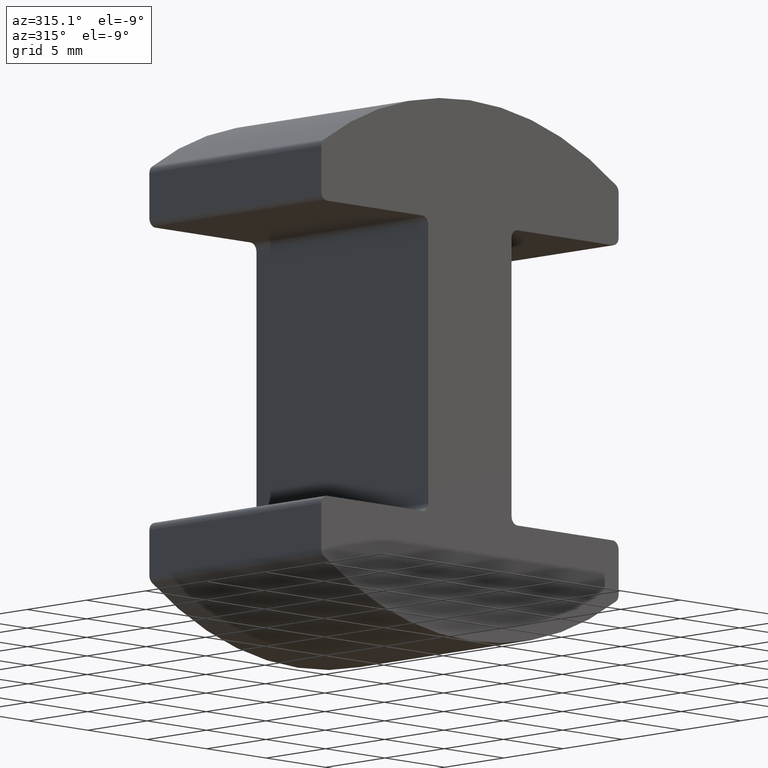
[diagram: clean part render]
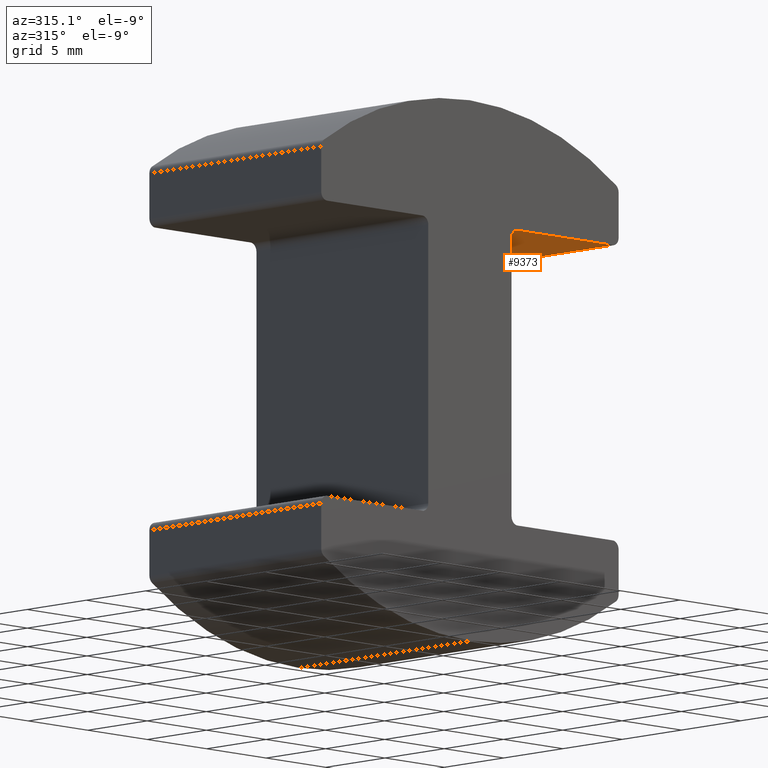
[diagram: same view with one face highlighted and labeled with its STEP entity id]
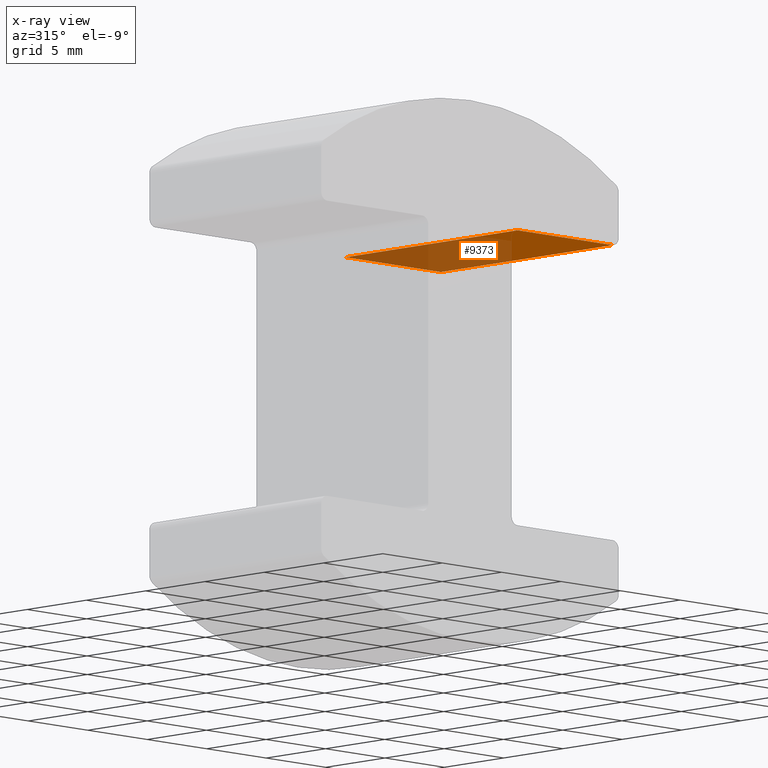
[diagram: x-ray of the same camera — body ghosted, the highlighted face saturated]
A machine part, auxiliary view. The second image highlights one B-rep face of the part: STEP entity #9373.
The next image is the same camera in x-ray: the body ghosted, the highlighted face saturated — about 66% of this face is hidden behind the body in this view.
In plain terms, the highlighted planar face has unit normal (0, 0, -1).
Its self-contained STEP definition (entity closure, byte-faithful):
#446 = DIRECTION ( 'NONE',  ( 0.0000000000000000000, -1.000000000000000000, 0.0000000000000000000 ) ) ;
#525 = VECTOR ( 'NONE', #4655, 1000.000000000000000 ) ;
#840 = PLANE ( 'NONE',  #6059 ) ;
#1107 = VERTEX_POINT ( 'NONE', #11368 ) ;
#1991 = ORIENTED_EDGE ( 'NONE', *, *, #2882, .T. ) ;
#2522 = EDGE_CURVE ( 'NONE', #10345, #7167, #11994, .T. ) ;
#2882 = EDGE_CURVE ( 'NONE', #10868, #7167, #6822, .T. ) ;
#3238 = DIRECTION ( 'NONE',  ( -0.0000000000000000000, 1.000000000000000000, -0.0000000000000000000 ) ) ;
#3459 = ORIENTED_EDGE ( 'NONE', *, *, #6898, .T. ) ;
#3621 = EDGE_LOOP ( 'NONE', ( #10609, #3459, #4533, #1991 ) ) ;
#3957 = CARTESIAN_POINT ( 'NONE',  ( 3.999999999999999100, 7.250000000000000000, 8.899999999999998600 ) ) ;
#4533 = ORIENTED_EDGE ( 'NONE', *, *, #12345, .T. ) ;
#4545 = CARTESIAN_POINT ( 'NONE',  ( 3.500000000000000000, -7.250000000000000000, 8.899999999999998600 ) ) ;
#4655 = DIRECTION ( 'NONE',  ( 1.000000000000000000, 0.0000000000000000000, 1.927470528863119000E-016 ) ) ;
#4742 = DIRECTION ( 'NONE',  ( 1.927470528863119300E-016, 0.0000000000000000000, -1.000000000000000000 ) ) ;
#5276 = VECTOR ( 'NONE', #3238, 1000.000000000000000 ) ;
#6004 = LINE ( 'NONE', #3957, #5276 ) ;
#6059 = AXIS2_PLACEMENT_3D ( 'NONE', #11272, #4742, #10405 ) ;
#6697 = DIRECTION ( 'NONE',  ( 1.000000000000000000, 0.0000000000000000000, 1.927470528863119000E-016 ) ) ;
#6822 = LINE ( 'NONE', #9934, #10817 ) ;
#6898 = EDGE_CURVE ( 'NONE', #10345, #1107, #6004, .T. ) ;
#6993 = LINE ( 'NONE', #7647, #11329 ) ;
#7167 = VERTEX_POINT ( 'NONE', #7632 ) ;
#7632 = CARTESIAN_POINT ( 'NONE',  ( 11.99999999999999800, -7.250000000000000000, 8.900000000000000400 ) ) ;
#7647 = CARTESIAN_POINT ( 'NONE',  ( 3.500000000000000000, 7.250000000000000000, 8.899999999999998600 ) ) ;
#8952 = FACE_OUTER_BOUND ( 'NONE', #3621, .T. ) ;
#9373 = ADVANCED_FACE ( 'NONE', ( #8952 ), #840, .T. ) ;
#9685 = CARTESIAN_POINT ( 'NONE',  ( 3.999999999999999100, -7.250000000000000000, 8.899999999999998600 ) ) ;
#9934 = CARTESIAN_POINT ( 'NONE',  ( 11.99999999999999800, 7.250000000000000000, 8.900000000000000400 ) ) ;
#10345 = VERTEX_POINT ( 'NONE', #9685 ) ;
#10405 = DIRECTION ( 'NONE',  ( -1.000000000000000000, 0.0000000000000000000, -1.927470528863119300E-016 ) ) ;
#10609 = ORIENTED_EDGE ( 'NONE', *, *, #2522, .F. ) ;
#10817 = VECTOR ( 'NONE', #446, 1000.000000000000000 ) ;
#10868 = VERTEX_POINT ( 'NONE', #11273 ) ;
#11272 = CARTESIAN_POINT ( 'NONE',  ( 3.500000000000000000, 7.250000000000000000, 8.899999999999998600 ) ) ;
#11273 = CARTESIAN_POINT ( 'NONE',  ( 11.99999999999999800, 7.250000000000000000, 8.900000000000000400 ) ) ;
#11329 = VECTOR ( 'NONE', #6697, 1000.000000000000000 ) ;
#11368 = CARTESIAN_POINT ( 'NONE',  ( 3.999999999999999100, 7.250000000000000000, 8.899999999999998600 ) ) ;
#11994 = LINE ( 'NONE', #4545, #525 ) ;
#12345 = EDGE_CURVE ( 'NONE', #1107, #10868, #6993, .T. ) ;